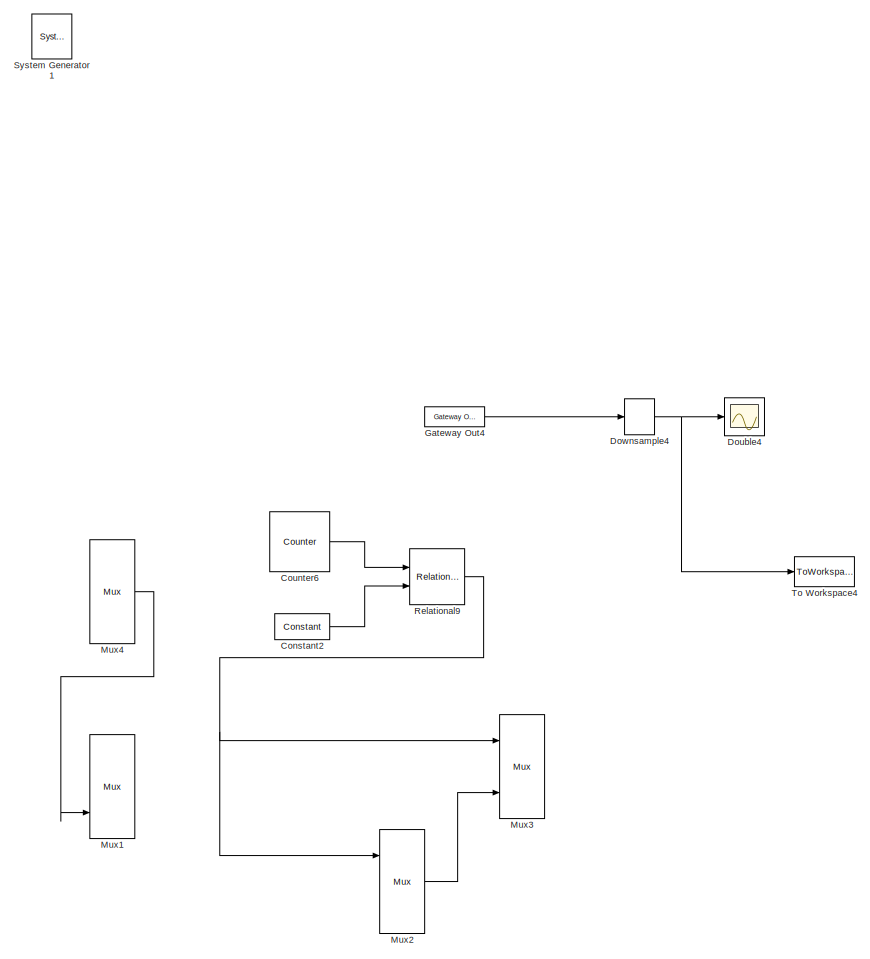
[diagram: root canvas - part 1/2, right side, full height]
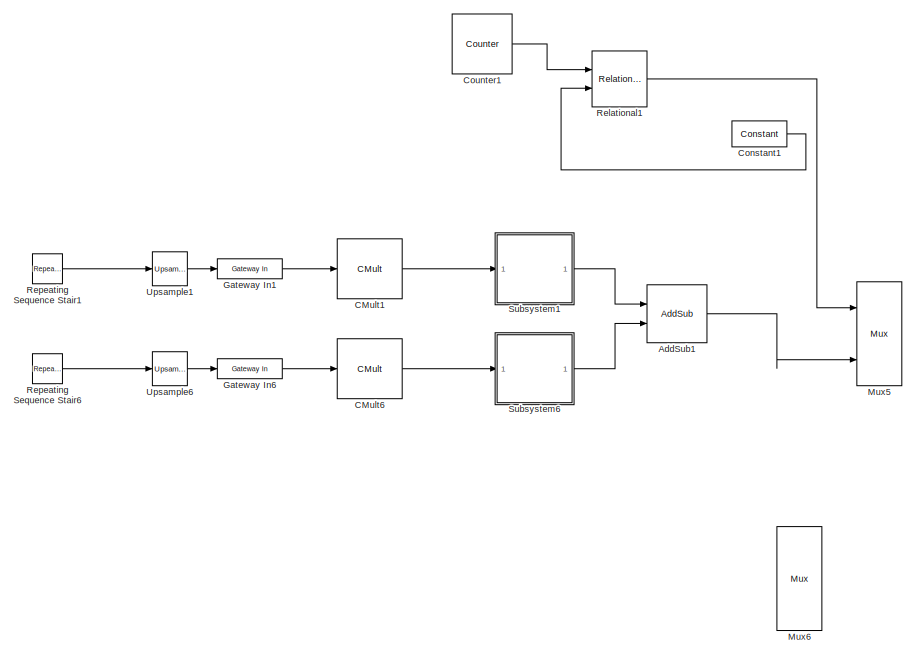
[diagram: root canvas - part 2/2, middle left region]
MODEL slx_dff5ca237aae
KIND model
CONFIG AbsTol = auto
CONFIG EnableMultiTasking = off
CONFIG FixedStep = auto
CONFIG MaxStep = auto
CONFIG MinStep = auto
CONFIG RelTol = 1e-3
CONFIG SampleTimeConstraint = Unconstrained
CONFIG Solver = VariableStepAuto
CONFIG SolverName = VariableStepAuto
CONFIG StartTime = 0.0
CONFIG StopTime = 12000
BLOCK [Reference]  System Generator1  REF=xbsIndex_r4/ System Generator
  AttributesFormatString = System\nGenerator
  Ports = []
  SourceBlock = xbsIndex_r4/ System Generator
  SourceType = Xilinx System Generator Block
  Tag = genX
  UserDataPersistent = on
BLOCK [Reference] AddSub1  REF=xbsIndex_r4/AddSub
  Ports = [2, 1]
  SourceBlock = xbsIndex_r4/AddSub
  SourceType = Xilinx Adder/Subtracter Block
BLOCK [Reference] CMult1  REF=xbsIndex_r4/CMult
  Ports = [1, 1]
  SourceBlock = xbsIndex_r4/CMult
  SourceType = Xilinx Constant Multiplier Block
BLOCK [Reference] CMult6  REF=xbsIndex_r4/CMult
  Ports = [1, 1]
  SourceBlock = xbsIndex_r4/CMult
  SourceType = Xilinx Constant Multiplier Block
BLOCK [Reference] Constant1  REF=xbsIndex_r4/Constant
  Ports = [0, 1]
  SourceBlock = xbsIndex_r4/Constant
  SourceType = Xilinx Constant Block Block
BLOCK [Reference] Constant2  REF=xbsIndex_r4/Constant
  Ports = [0, 1]
  SourceBlock = xbsIndex_r4/Constant
  SourceType = Xilinx Constant Block Block
BLOCK [Reference] Counter1  REF=xbsIndex_r4/Counter
  Ports = [0, 1]
  SourceBlock = xbsIndex_r4/Counter
  SourceType = Xilinx Counter Block
BLOCK [Reference] Counter6  REF=xbsIndex_r4/Counter
  Ports = [0, 1]
  SourceBlock = xbsIndex_r4/Counter
  SourceType = Xilinx Counter Block
BLOCK [Scope] Double4
  Floating = off
  NumInputPorts = 1
  Ports = [1]
  ScopeSpecificationString = Simulink.scopes.TimeScopeBlockCfg('CurrentConfiguration', extmgr.ConfigurationSet(extmgr.Configuration('Core','General UI',true),extmgr.Configuration('Core','Source UI',true),extmgr.Configuration('Sources','WiredSimulink',true,'DataLoggingVariableName','ScopeData2'),extmgr.Configuration('Visuals','Time Domain',true,'SerializedDisplays',{struct('MinYLimReal','-193.08441','MaxYLimReal','21.45382','Y...<+1471ch>
BLOCK [DownSample] Downsample4
  InputProcessing = Elements as channels (sample based)
  N = 12
  RateOptions = Allow multirate processing
  phase = 11
BLOCK [Reference] Gateway In1  REF=xbsIndex_r4/Gateway In
  Ports = [1, 1]
  SourceBlock = xbsIndex_r4/Gateway In
  SourceType = Xilinx Gateway In Block
BLOCK [Reference] Gateway In6  REF=xbsIndex_r4/Gateway In
  Ports = [1, 1]
  SourceBlock = xbsIndex_r4/Gateway In
  SourceType = Xilinx Gateway In Block
BLOCK [Reference] Gateway Out4  REF=xbsIndex_r4/Gateway Out
  Ports = [1, 1]
  SourceBlock = xbsIndex_r4/Gateway Out
  SourceType = Xilinx Gateway Out Block
BLOCK [Reference] Mux1  REF=xbsIndex_r4/Mux
  Ports = [3, 1]
  SourceBlock = xbsIndex_r4/Mux
  SourceType = Xilinx Bus Multiplexer Block
BLOCK [Reference] Mux2  REF=xbsIndex_r4/Mux
  Ports = [3, 1]
  SourceBlock = xbsIndex_r4/Mux
  SourceType = Xilinx Bus Multiplexer Block
BLOCK [Reference] Mux3  REF=xbsIndex_r4/Mux
  Ports = [3, 1]
  SourceBlock = xbsIndex_r4/Mux
  SourceType = Xilinx Bus Multiplexer Block
BLOCK [Reference] Mux4  REF=xbsIndex_r4/Mux
  Ports = [3, 1]
  SourceBlock = xbsIndex_r4/Mux
  SourceType = Xilinx Bus Multiplexer Block
BLOCK [Reference] Mux5  REF=xbsIndex_r4/Mux
  Ports = [3, 1]
  SourceBlock = xbsIndex_r4/Mux
  SourceType = Xilinx Bus Multiplexer Block
BLOCK [Reference] Mux6  REF=xbsIndex_r4/Mux
  Ports = [3, 1]
  SourceBlock = xbsIndex_r4/Mux
  SourceType = Xilinx Bus Multiplexer Block
BLOCK [Reference] Relational1  REF=xbsIndex_r4/Relational
  Ports = [2, 1]
  SourceBlock = xbsIndex_r4/Relational
  SourceType = Xilinx Arithmetic Relational Operator Block
BLOCK [Reference] Relational9  REF=xbsIndex_r4/Relational
  Ports = [2, 1]
  SourceBlock = xbsIndex_r4/Relational
  SourceType = Xilinx Arithmetic Relational Operator Block
BLOCK [Reference] Repeating Sequence Stair1  REF=simulink/Sources/Repeating
Sequence
Stair
  Ports = [0, 1]
  SourceBlock = simulink/Sources/Repeating\nSequence\nStair
  SourceProductBaseCode = SL
  SourceProductName = Simulink
  SourceType = Repeating Sequence Stair
BLOCK [Reference] Repeating Sequence Stair6  REF=simulink/Sources/Repeating
Sequence
Stair
  Ports = [0, 1]
  SourceBlock = simulink/Sources/Repeating\nSequence\nStair
  SourceProductBaseCode = SL
  SourceProductName = Simulink
  SourceType = Repeating Sequence Stair
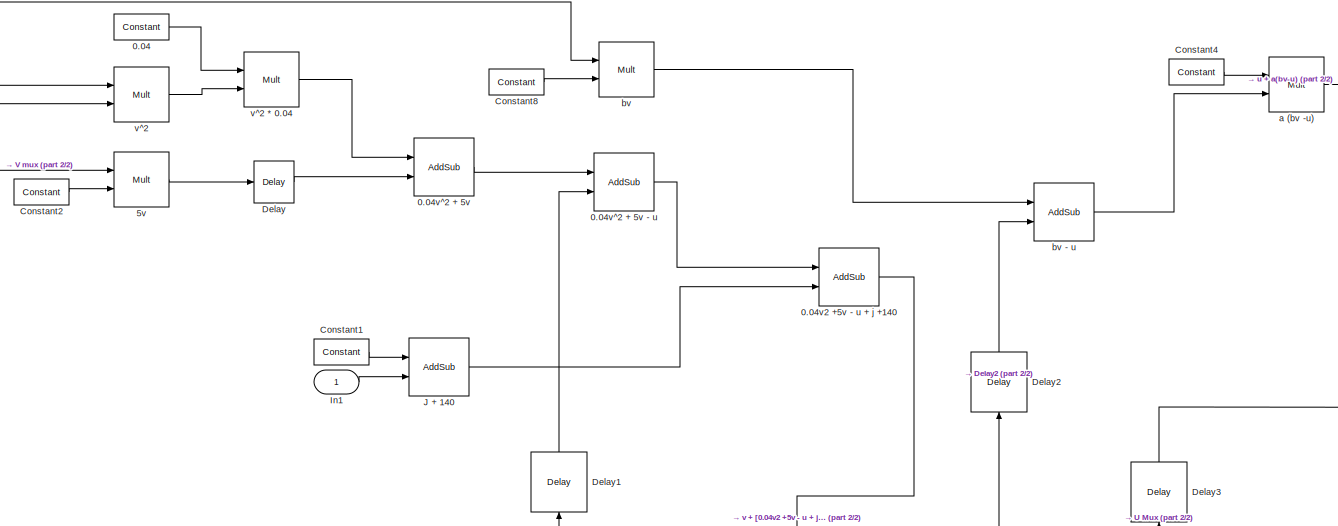
[diagram: Subsystem1 - part 1/2, top center region]
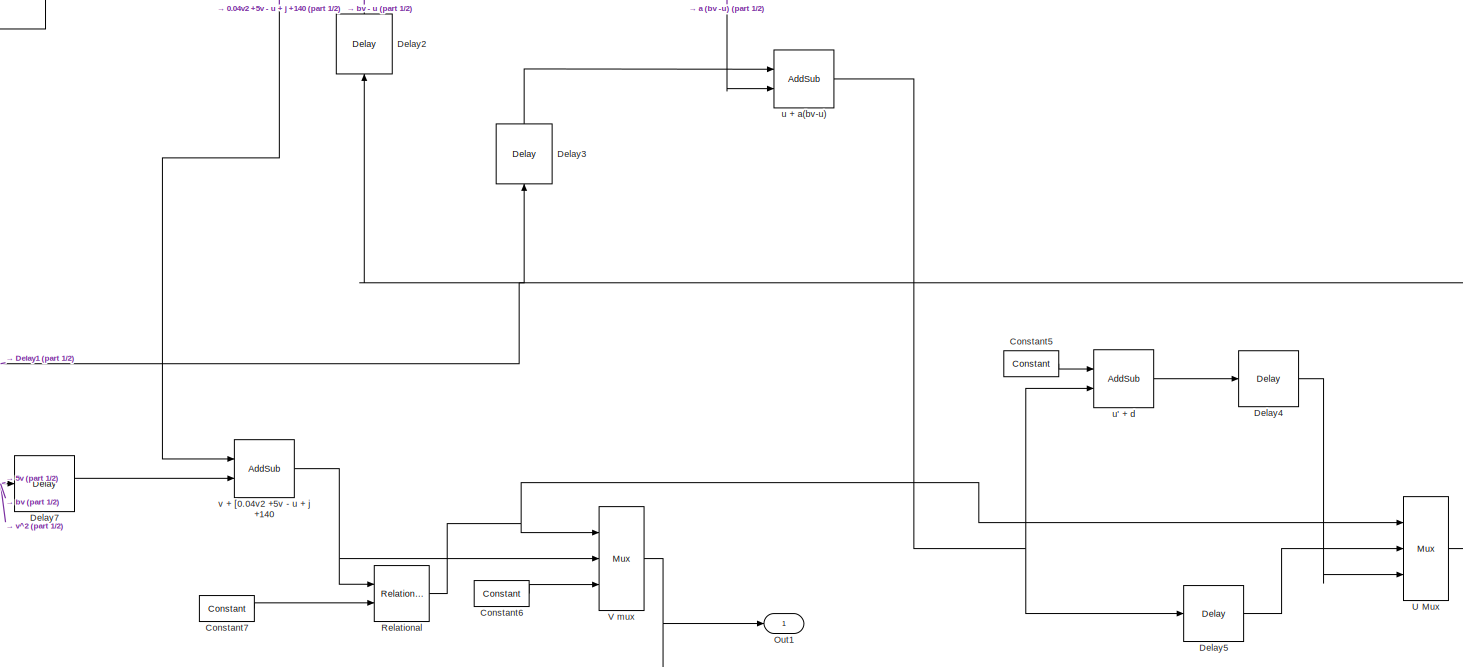
[diagram: Subsystem1 - part 2/2, central region]
BLOCK [SubSystem] Subsystem1
  Ports = [1, 1]
  RequestExecContextInheritance = off
BLOCK [Reference] Subsystem1/0.04   REF=xbsIndex_r4/Constant
  Ports = [0, 1]
  SourceBlock = xbsIndex_r4/Constant
  SourceType = Xilinx Constant Block Block
BLOCK [Reference] Subsystem1/0.04v2 +5v - u + j +140  REF=xbsIndex_r4/AddSub
  Ports = [2, 1]
  SourceBlock = xbsIndex_r4/AddSub
  SourceType = Xilinx Adder/Subtracter Block
BLOCK [Reference] Subsystem1/0.04v^2 + 5v  REF=xbsIndex_r4/AddSub
  Ports = [2, 1]
  SourceBlock = xbsIndex_r4/AddSub
  SourceType = Xilinx Adder/Subtracter Block
BLOCK [Reference] Subsystem1/0.04v^2 + 5v - u  REF=xbsIndex_r4/AddSub
  Ports = [2, 1]
  SourceBlock = xbsIndex_r4/AddSub
  SourceType = Xilinx Adder/Subtracter Block
BLOCK [Reference] Subsystem1/5v  REF=xbsIndex_r4/Mult
  Ports = [2, 1]
  SourceBlock = xbsIndex_r4/Mult
  SourceType = Xilinx Multiplier Block
BLOCK [Reference] Subsystem1/Constant1  REF=xbsIndex_r4/Constant
  Ports = [0, 1]
  SourceBlock = xbsIndex_r4/Constant
  SourceType = Xilinx Constant Block Block
BLOCK [Reference] Subsystem1/Constant2  REF=xbsIndex_r4/Constant
  Ports = [0, 1]
  SourceBlock = xbsIndex_r4/Constant
  SourceType = Xilinx Constant Block Block
BLOCK [Reference] Subsystem1/Constant4  REF=xbsIndex_r4/Constant
  Ports = [0, 1]
  SourceBlock = xbsIndex_r4/Constant
  SourceType = Xilinx Constant Block Block
BLOCK [Reference] Subsystem1/Constant5  REF=xbsIndex_r4/Constant
  Ports = [0, 1]
  SourceBlock = xbsIndex_r4/Constant
  SourceType = Xilinx Constant Block Block
BLOCK [Reference] Subsystem1/Constant6  REF=xbsIndex_r4/Constant
  Ports = [0, 1]
  SourceBlock = xbsIndex_r4/Constant
  SourceType = Xilinx Constant Block Block
BLOCK [Reference] Subsystem1/Constant7  REF=xbsIndex_r4/Constant
  Ports = [0, 1]
  SourceBlock = xbsIndex_r4/Constant
  SourceType = Xilinx Constant Block Block
BLOCK [Reference] Subsystem1/Constant8  REF=xbsIndex_r4/Constant
  Ports = [0, 1]
  SourceBlock = xbsIndex_r4/Constant
  SourceType = Xilinx Constant Block Block
BLOCK [Reference] Subsystem1/Delay  REF=xbsIndex_r4/Delay
  Ports = [1, 1]
  SourceBlock = xbsIndex_r4/Delay
  SourceType = Xilinx Delay Block
BLOCK [Reference] Subsystem1/Delay1  REF=xbsIndex_r4/Delay
  Ports = [1, 1]
  SourceBlock = xbsIndex_r4/Delay
  SourceType = Xilinx Delay Block
BLOCK [Reference] Subsystem1/Delay2  REF=xbsIndex_r4/Delay
  Ports = [1, 1]
  SourceBlock = xbsIndex_r4/Delay
  SourceType = Xilinx Delay Block
BLOCK [Reference] Subsystem1/Delay3  REF=xbsIndex_r4/Delay
  Ports = [1, 1]
  SourceBlock = xbsIndex_r4/Delay
  SourceType = Xilinx Delay Block
BLOCK [Reference] Subsystem1/Delay4  REF=xbsIndex_r4/Delay
  Ports = [1, 1]
  SourceBlock = xbsIndex_r4/Delay
  SourceType = Xilinx Delay Block
BLOCK [Reference] Subsystem1/Delay5  REF=xbsIndex_r4/Delay
  Ports = [1, 1]
  SourceBlock = xbsIndex_r4/Delay
  SourceType = Xilinx Delay Block
BLOCK [Reference] Subsystem1/Delay7  REF=xbsIndex_r4/Delay
  Ports = [1, 1]
  SourceBlock = xbsIndex_r4/Delay
  SourceType = Xilinx Delay Block
BLOCK [Inport] Subsystem1/In1
  IconDisplay = Port number
BLOCK [Reference] Subsystem1/J + 140   REF=xbsIndex_r4/AddSub
  Ports = [2, 1]
  SourceBlock = xbsIndex_r4/AddSub
  SourceType = Xilinx Adder/Subtracter Block
BLOCK [Outport] Subsystem1/Out1
  IconDisplay = Port number
BLOCK [Reference] Subsystem1/Relational  REF=xbsIndex_r4/Relational
  Ports = [2, 1]
  SourceBlock = xbsIndex_r4/Relational
  SourceType = Xilinx Arithmetic Relational Operator Block
BLOCK [Reference] Subsystem1/U Mux  REF=xbsIndex_r4/Mux
  Ports = [3, 1]
  SourceBlock = xbsIndex_r4/Mux
  SourceType = Xilinx Bus Multiplexer Block
BLOCK [Reference] Subsystem1/V mux  REF=xbsIndex_r4/Mux
  Ports = [3, 1]
  SourceBlock = xbsIndex_r4/Mux
  SourceType = Xilinx Bus Multiplexer Block
BLOCK [Reference] Subsystem1/a (bv -u)  REF=xbsIndex_r4/Mult
  Ports = [2, 1]
  SourceBlock = xbsIndex_r4/Mult
  SourceType = Xilinx Multiplier Block
BLOCK [Reference] Subsystem1/bv   REF=xbsIndex_r4/Mult
  Ports = [2, 1]
  SourceBlock = xbsIndex_r4/Mult
  SourceType = Xilinx Multiplier Block
BLOCK [Reference] Subsystem1/bv - u  REF=xbsIndex_r4/AddSub
  Ports = [2, 1]
  SourceBlock = xbsIndex_r4/AddSub
  SourceType = Xilinx Adder/Subtracter Block
BLOCK [Reference] Subsystem1/u + a(bv-u)  REF=xbsIndex_r4/AddSub
  Ports = [2, 1]
  SourceBlock = xbsIndex_r4/AddSub
  SourceType = Xilinx Adder/Subtracter Block
BLOCK [Reference] Subsystem1/u' + d  REF=xbsIndex_r4/AddSub
  Ports = [2, 1]
  SourceBlock = xbsIndex_r4/AddSub
  SourceType = Xilinx Adder/Subtracter Block
BLOCK [Reference] Subsystem1/v + [0.04v2 +5v - u + j +140  REF=xbsIndex_r4/AddSub
  Ports = [2, 1]
  SourceBlock = xbsIndex_r4/AddSub
  SourceType = Xilinx Adder/Subtracter Block
BLOCK [Reference] Subsystem1/v^2   REF=xbsIndex_r4/Mult
  Ports = [2, 1]
  SourceBlock = xbsIndex_r4/Mult
  SourceType = Xilinx Multiplier Block
BLOCK [Reference] Subsystem1/v^2 * 0.04  REF=xbsIndex_r4/Mult
  Ports = [2, 1]
  SourceBlock = xbsIndex_r4/Mult
  SourceType = Xilinx Multiplier Block
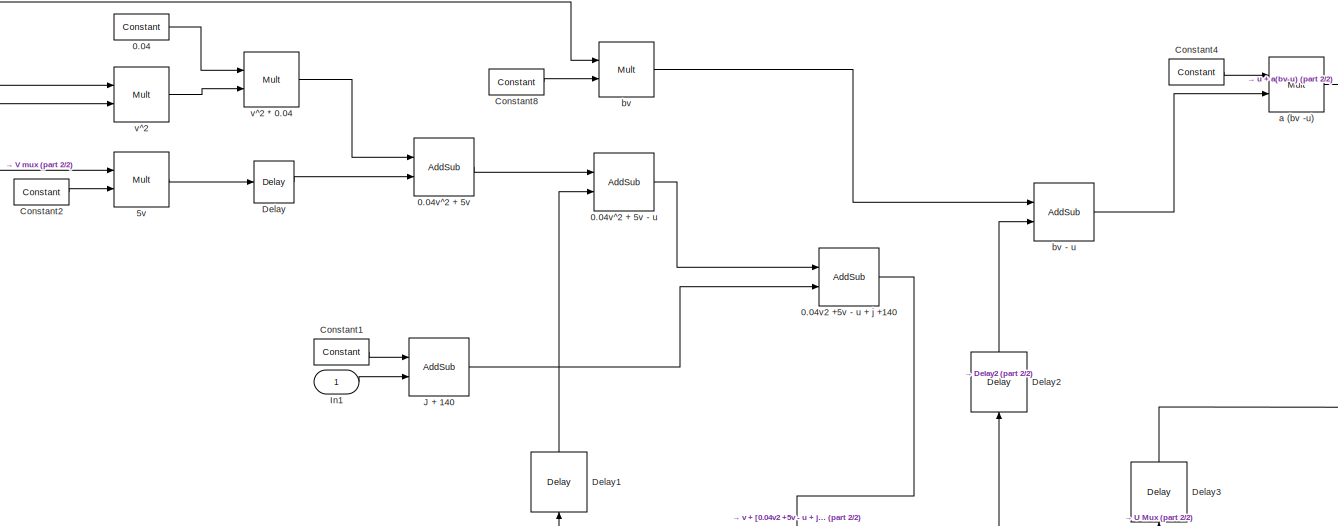
[diagram: Subsystem6 - part 1/2, top center region]
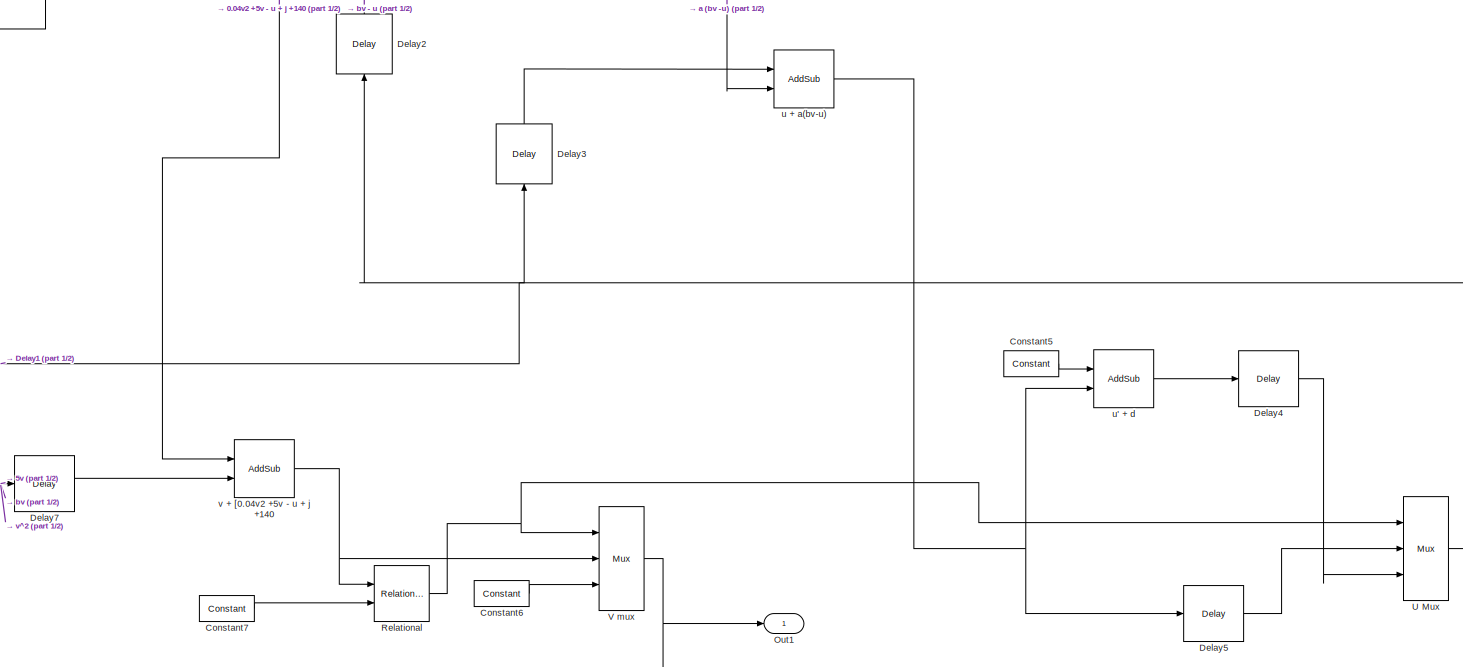
[diagram: Subsystem6 - part 2/2, central region]
BLOCK [SubSystem] Subsystem6
  Ports = [1, 1]
  RequestExecContextInheritance = off
BLOCK [Reference] Subsystem6/0.04   REF=xbsIndex_r4/Constant
  Ports = [0, 1]
  SourceBlock = xbsIndex_r4/Constant
  SourceType = Xilinx Constant Block Block
BLOCK [Reference] Subsystem6/0.04v2 +5v - u + j +140  REF=xbsIndex_r4/AddSub
  Ports = [2, 1]
  SourceBlock = xbsIndex_r4/AddSub
  SourceType = Xilinx Adder/Subtracter Block
BLOCK [Reference] Subsystem6/0.04v^2 + 5v  REF=xbsIndex_r4/AddSub
  Ports = [2, 1]
  SourceBlock = xbsIndex_r4/AddSub
  SourceType = Xilinx Adder/Subtracter Block
BLOCK [Reference] Subsystem6/0.04v^2 + 5v - u  REF=xbsIndex_r4/AddSub
  Ports = [2, 1]
  SourceBlock = xbsIndex_r4/AddSub
  SourceType = Xilinx Adder/Subtracter Block
BLOCK [Reference] Subsystem6/5v  REF=xbsIndex_r4/Mult
  Ports = [2, 1]
  SourceBlock = xbsIndex_r4/Mult
  SourceType = Xilinx Multiplier Block
BLOCK [Reference] Subsystem6/Constant1  REF=xbsIndex_r4/Constant
  Ports = [0, 1]
  SourceBlock = xbsIndex_r4/Constant
  SourceType = Xilinx Constant Block Block
BLOCK [Reference] Subsystem6/Constant2  REF=xbsIndex_r4/Constant
  Ports = [0, 1]
  SourceBlock = xbsIndex_r4/Constant
  SourceType = Xilinx Constant Block Block
BLOCK [Reference] Subsystem6/Constant4  REF=xbsIndex_r4/Constant
  Ports = [0, 1]
  SourceBlock = xbsIndex_r4/Constant
  SourceType = Xilinx Constant Block Block
BLOCK [Reference] Subsystem6/Constant5  REF=xbsIndex_r4/Constant
  Ports = [0, 1]
  SourceBlock = xbsIndex_r4/Constant
  SourceType = Xilinx Constant Block Block
BLOCK [Reference] Subsystem6/Constant6  REF=xbsIndex_r4/Constant
  Ports = [0, 1]
  SourceBlock = xbsIndex_r4/Constant
  SourceType = Xilinx Constant Block Block
BLOCK [Reference] Subsystem6/Constant7  REF=xbsIndex_r4/Constant
  Ports = [0, 1]
  SourceBlock = xbsIndex_r4/Constant
  SourceType = Xilinx Constant Block Block
BLOCK [Reference] Subsystem6/Constant8  REF=xbsIndex_r4/Constant
  Ports = [0, 1]
  SourceBlock = xbsIndex_r4/Constant
  SourceType = Xilinx Constant Block Block
BLOCK [Reference] Subsystem6/Delay  REF=xbsIndex_r4/Delay
  Ports = [1, 1]
  SourceBlock = xbsIndex_r4/Delay
  SourceType = Xilinx Delay Block
BLOCK [Reference] Subsystem6/Delay1  REF=xbsIndex_r4/Delay
  Ports = [1, 1]
  SourceBlock = xbsIndex_r4/Delay
  SourceType = Xilinx Delay Block
BLOCK [Reference] Subsystem6/Delay2  REF=xbsIndex_r4/Delay
  Ports = [1, 1]
  SourceBlock = xbsIndex_r4/Delay
  SourceType = Xilinx Delay Block
BLOCK [Reference] Subsystem6/Delay3  REF=xbsIndex_r4/Delay
  Ports = [1, 1]
  SourceBlock = xbsIndex_r4/Delay
  SourceType = Xilinx Delay Block
BLOCK [Reference] Subsystem6/Delay4  REF=xbsIndex_r4/Delay
  Ports = [1, 1]
  SourceBlock = xbsIndex_r4/Delay
  SourceType = Xilinx Delay Block
BLOCK [Reference] Subsystem6/Delay5  REF=xbsIndex_r4/Delay
  Ports = [1, 1]
  SourceBlock = xbsIndex_r4/Delay
  SourceType = Xilinx Delay Block
BLOCK [Reference] Subsystem6/Delay7  REF=xbsIndex_r4/Delay
  Ports = [1, 1]
  SourceBlock = xbsIndex_r4/Delay
  SourceType = Xilinx Delay Block
BLOCK [Inport] Subsystem6/In1
  IconDisplay = Port number
BLOCK [Reference] Subsystem6/J + 140   REF=xbsIndex_r4/AddSub
  Ports = [2, 1]
  SourceBlock = xbsIndex_r4/AddSub
  SourceType = Xilinx Adder/Subtracter Block
BLOCK [Outport] Subsystem6/Out1
  IconDisplay = Port number
BLOCK [Reference] Subsystem6/Relational  REF=xbsIndex_r4/Relational
  Ports = [2, 1]
  SourceBlock = xbsIndex_r4/Relational
  SourceType = Xilinx Arithmetic Relational Operator Block
BLOCK [Reference] Subsystem6/U Mux  REF=xbsIndex_r4/Mux
  Ports = [3, 1]
  SourceBlock = xbsIndex_r4/Mux
  SourceType = Xilinx Bus Multiplexer Block
BLOCK [Reference] Subsystem6/V mux  REF=xbsIndex_r4/Mux
  Ports = [3, 1]
  SourceBlock = xbsIndex_r4/Mux
  SourceType = Xilinx Bus Multiplexer Block
BLOCK [Reference] Subsystem6/a (bv -u)  REF=xbsIndex_r4/Mult
  Ports = [2, 1]
  SourceBlock = xbsIndex_r4/Mult
  SourceType = Xilinx Multiplier Block
BLOCK [Reference] Subsystem6/bv   REF=xbsIndex_r4/Mult
  Ports = [2, 1]
  SourceBlock = xbsIndex_r4/Mult
  SourceType = Xilinx Multiplier Block
BLOCK [Reference] Subsystem6/bv - u  REF=xbsIndex_r4/AddSub
  Ports = [2, 1]
  SourceBlock = xbsIndex_r4/AddSub
  SourceType = Xilinx Adder/Subtracter Block
BLOCK [Reference] Subsystem6/u + a(bv-u)  REF=xbsIndex_r4/AddSub
  Ports = [2, 1]
  SourceBlock = xbsIndex_r4/AddSub
  SourceType = Xilinx Adder/Subtracter Block
BLOCK [Reference] Subsystem6/u' + d  REF=xbsIndex_r4/AddSub
  Ports = [2, 1]
  SourceBlock = xbsIndex_r4/AddSub
  SourceType = Xilinx Adder/Subtracter Block
BLOCK [Reference] Subsystem6/v + [0.04v2 +5v - u + j +140  REF=xbsIndex_r4/AddSub
  Ports = [2, 1]
  SourceBlock = xbsIndex_r4/AddSub
  SourceType = Xilinx Adder/Subtracter Block
BLOCK [Reference] Subsystem6/v^2   REF=xbsIndex_r4/Mult
  Ports = [2, 1]
  SourceBlock = xbsIndex_r4/Mult
  SourceType = Xilinx Multiplier Block
BLOCK [Reference] Subsystem6/v^2 * 0.04  REF=xbsIndex_r4/Mult
  Ports = [2, 1]
  SourceBlock = xbsIndex_r4/Mult
  SourceType = Xilinx Multiplier Block
BLOCK [ToWorkspace] To Workspace4
  FixptAsFi = on
  MaxDataPoints = inf
  Ports = [1]
  SampleTime = -1
  VariableName = double_ensemble_
BLOCK [Reference] Upsample1  REF=dspsigops/Upsample
  Ports = [1, 1]
  SourceBlock = dspsigops/Upsample
  SourceProductBaseCode = DS
  SourceProductName = DSP System Toolbox
  SourceType = Upsample
  UserDataPersistent = on
BLOCK [Reference] Upsample6  REF=dspsigops/Upsample
  Ports = [1, 1]
  SourceBlock = dspsigops/Upsample
  SourceProductBaseCode = DS
  SourceProductName = DSP System Toolbox
  SourceType = Upsample
  UserDataPersistent = on
LINE AddSub1:1 -> Mux5:3
LINE CMult1:1 -> Subsystem1:1
LINE CMult6:1 -> Subsystem6:1
LINE Constant1:1 -> Relational1:2
LINE Constant2:1 -> Relational9:2
LINE Counter1:1 -> Relational1:1
LINE Counter6:1 -> Relational9:1
NET Downsample4:1 -> Double4:1, To Workspace4:1
LINE Gateway In1:1 -> CMult1:1
LINE Gateway In6:1 -> CMult6:1
LINE Gateway Out4:1 -> Downsample4:1
LINE Mux2:1 -> Mux3:3
LINE Mux4:1 -> Mux1:3
LINE Relational1:1 -> Mux5:1
NET Relational9:1 -> Mux2:1, Mux3:1
LINE Repeating Sequence Stair1:1 -> Upsample1:1
LINE Repeating Sequence Stair6:1 -> Upsample6:1
LINE Subsystem1/0.04 :1 -> Subsystem1/v^2 * 0.04:1
LINE Subsystem1/0.04v2 +5v - u + j +140:1 -> Subsystem1/v + [0.04v2 +5v - u + j +140:1
LINE Subsystem1/0.04v^2 + 5v - u:1 -> Subsystem1/0.04v2 +5v - u + j +140:1
LINE Subsystem1/0.04v^2 + 5v:1 -> Subsystem1/0.04v^2 + 5v - u:1
LINE Subsystem1/5v:1 -> Subsystem1/Delay:1
LINE Subsystem1/Constant1:1 -> Subsystem1/J + 140 :1
LINE Subsystem1/Constant2:1 -> Subsystem1/5v:2
LINE Subsystem1/Constant4:1 -> Subsystem1/a (bv -u):1
LINE Subsystem1/Constant5:1 -> Subsystem1/u' + d:1
LINE Subsystem1/Constant6:1 -> Subsystem1/V mux:3
LINE Subsystem1/Constant7:1 -> Subsystem1/Relational:2
LINE Subsystem1/Constant8:1 -> Subsystem1/bv :2
LINE Subsystem1/Delay1:1 -> Subsystem1/0.04v^2 + 5v - u:2
LINE Subsystem1/Delay2:1 -> Subsystem1/bv - u:2
LINE Subsystem1/Delay3:1 -> Subsystem1/u + a(bv-u):1
LINE Subsystem1/Delay4:1 -> Subsystem1/U Mux:3
LINE Subsystem1/Delay5:1 -> Subsystem1/U Mux:2
LINE Subsystem1/Delay7:1 -> Subsystem1/v + [0.04v2 +5v - u + j +140:2
LINE Subsystem1/Delay:1 -> Subsystem1/0.04v^2 + 5v:2
LINE Subsystem1/In1:1 -> Subsystem1/J + 140 :2
LINE Subsystem1/J + 140 :1 -> Subsystem1/0.04v2 +5v - u + j +140:2
NET Subsystem1/Relational:1 -> Subsystem1/U Mux:1, Subsystem1/V mux:1
NET Subsystem1/U Mux:1 -> Subsystem1/Delay1:1, Subsystem1/Delay2:1, Subsystem1/Delay3:1
NET Subsystem1/V mux:1 -> Subsystem1/5v:1, Subsystem1/Delay7:1, Subsystem1/Out1:1, Subsystem1/bv :1, Subsystem1/v^2 :1, Subsystem1/v^2 :2
LINE Subsystem1/a (bv -u):1 -> Subsystem1/u + a(bv-u):2
LINE Subsystem1/bv - u:1 -> Subsystem1/a (bv -u):2
LINE Subsystem1/bv :1 -> Subsystem1/bv - u:1
NET Subsystem1/u + a(bv-u):1 -> Subsystem1/Delay5:1, Subsystem1/u' + d:2
LINE Subsystem1/u' + d:1 -> Subsystem1/Delay4:1
NET Subsystem1/v + [0.04v2 +5v - u + j +140:1 -> Subsystem1/Relational:1, Subsystem1/V mux:2
LINE Subsystem1/v^2 * 0.04:1 -> Subsystem1/0.04v^2 + 5v:1
LINE Subsystem1/v^2 :1 -> Subsystem1/v^2 * 0.04:2
LINE Subsystem1:1 -> AddSub1:1
LINE Subsystem6/0.04 :1 -> Subsystem6/v^2 * 0.04:1
LINE Subsystem6/0.04v2 +5v - u + j +140:1 -> Subsystem6/v + [0.04v2 +5v - u + j +140:1
LINE Subsystem6/0.04v^2 + 5v - u:1 -> Subsystem6/0.04v2 +5v - u + j +140:1
LINE Subsystem6/0.04v^2 + 5v:1 -> Subsystem6/0.04v^2 + 5v - u:1
LINE Subsystem6/5v:1 -> Subsystem6/Delay:1
LINE Subsystem6/Constant1:1 -> Subsystem6/J + 140 :1
LINE Subsystem6/Constant2:1 -> Subsystem6/5v:2
LINE Subsystem6/Constant4:1 -> Subsystem6/a (bv -u):1
LINE Subsystem6/Constant5:1 -> Subsystem6/u' + d:1
LINE Subsystem6/Constant6:1 -> Subsystem6/V mux:3
LINE Subsystem6/Constant7:1 -> Subsystem6/Relational:2
LINE Subsystem6/Constant8:1 -> Subsystem6/bv :2
LINE Subsystem6/Delay1:1 -> Subsystem6/0.04v^2 + 5v - u:2
LINE Subsystem6/Delay2:1 -> Subsystem6/bv - u:2
LINE Subsystem6/Delay3:1 -> Subsystem6/u + a(bv-u):1
LINE Subsystem6/Delay4:1 -> Subsystem6/U Mux:3
LINE Subsystem6/Delay5:1 -> Subsystem6/U Mux:2
LINE Subsystem6/Delay7:1 -> Subsystem6/v + [0.04v2 +5v - u + j +140:2
LINE Subsystem6/Delay:1 -> Subsystem6/0.04v^2 + 5v:2
LINE Subsystem6/In1:1 -> Subsystem6/J + 140 :2
LINE Subsystem6/J + 140 :1 -> Subsystem6/0.04v2 +5v - u + j +140:2
NET Subsystem6/Relational:1 -> Subsystem6/U Mux:1, Subsystem6/V mux:1
NET Subsystem6/U Mux:1 -> Subsystem6/Delay1:1, Subsystem6/Delay2:1, Subsystem6/Delay3:1
NET Subsystem6/V mux:1 -> Subsystem6/5v:1, Subsystem6/Delay7:1, Subsystem6/Out1:1, Subsystem6/bv :1, Subsystem6/v^2 :1, Subsystem6/v^2 :2
LINE Subsystem6/a (bv -u):1 -> Subsystem6/u + a(bv-u):2
LINE Subsystem6/bv - u:1 -> Subsystem6/a (bv -u):2
LINE Subsystem6/bv :1 -> Subsystem6/bv - u:1
NET Subsystem6/u + a(bv-u):1 -> Subsystem6/Delay5:1, Subsystem6/u' + d:2
LINE Subsystem6/u' + d:1 -> Subsystem6/Delay4:1
NET Subsystem6/v + [0.04v2 +5v - u + j +140:1 -> Subsystem6/Relational:1, Subsystem6/V mux:2
LINE Subsystem6/v^2 * 0.04:1 -> Subsystem6/0.04v^2 + 5v:1
LINE Subsystem6/v^2 :1 -> Subsystem6/v^2 * 0.04:2
LINE Subsystem6:1 -> AddSub1:2
LINE Upsample1:1 -> Gateway In1:1
LINE Upsample6:1 -> Gateway In6:1
note: NET lines group one-source signal fan-out (src -> all destinations, sorted); 1:1 wires keep LINE
